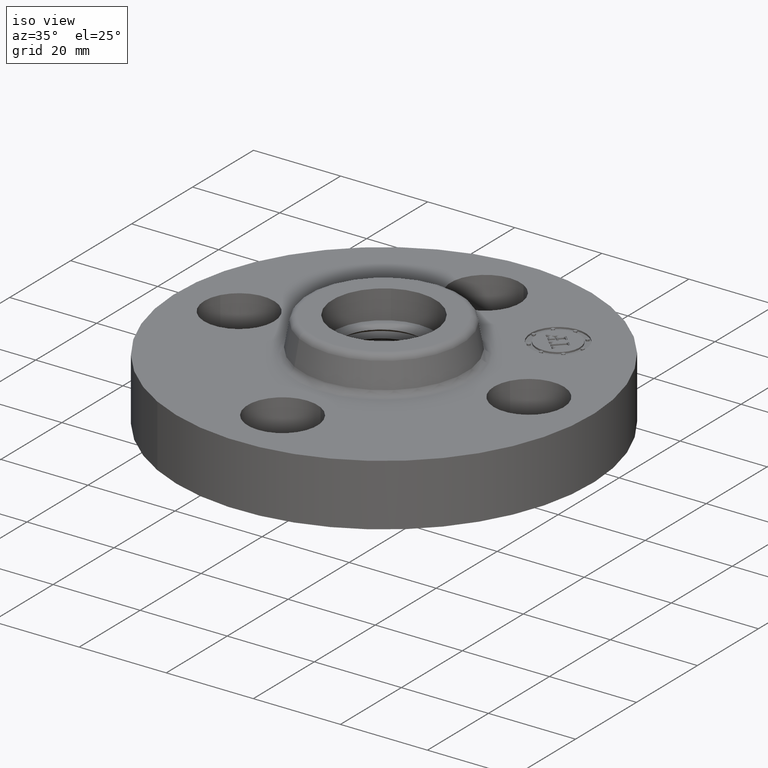
[diagram: clean part render]
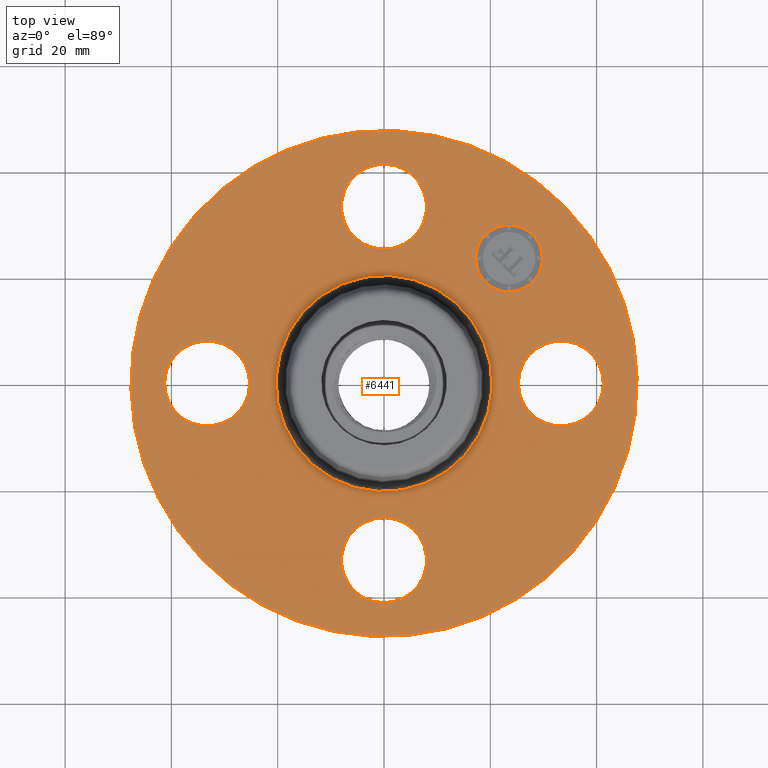
[diagram: tour spotlight — one face highlighted and labeled with its STEP entity id]
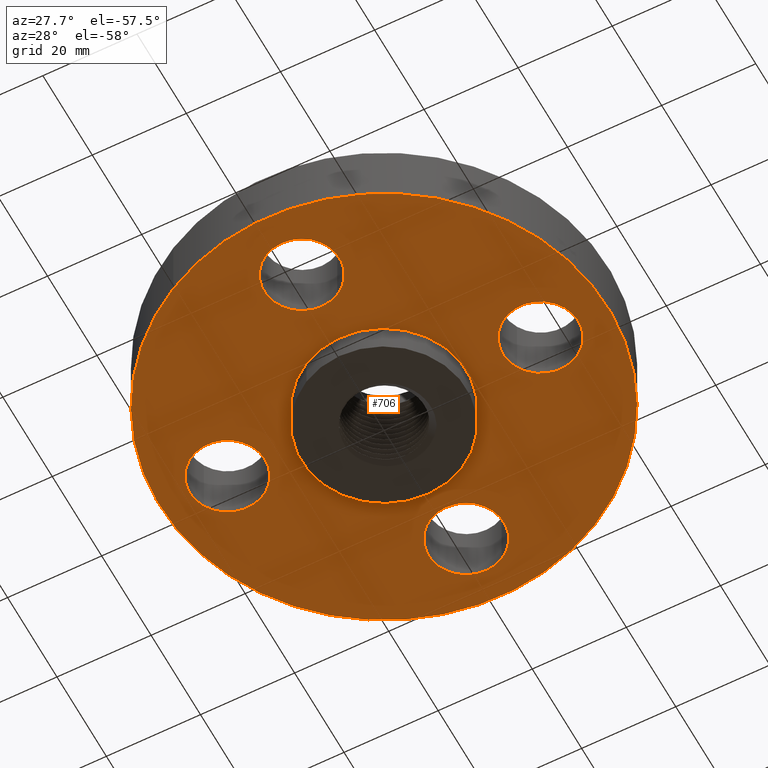
[diagram: tour spotlight — one face highlighted and labeled with its STEP entity id]
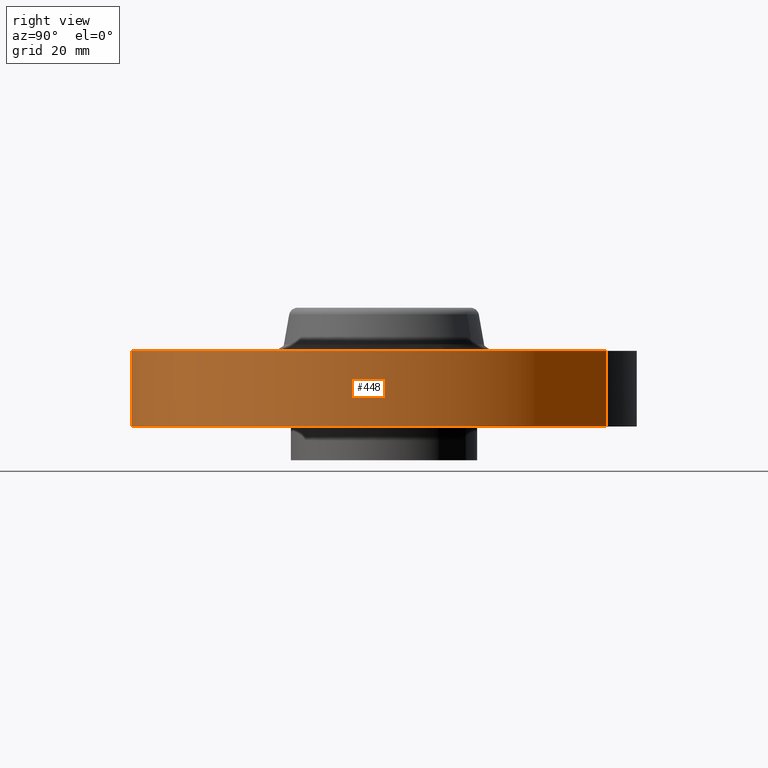
[diagram: tour spotlight — one face highlighted and labeled with its STEP entity id]
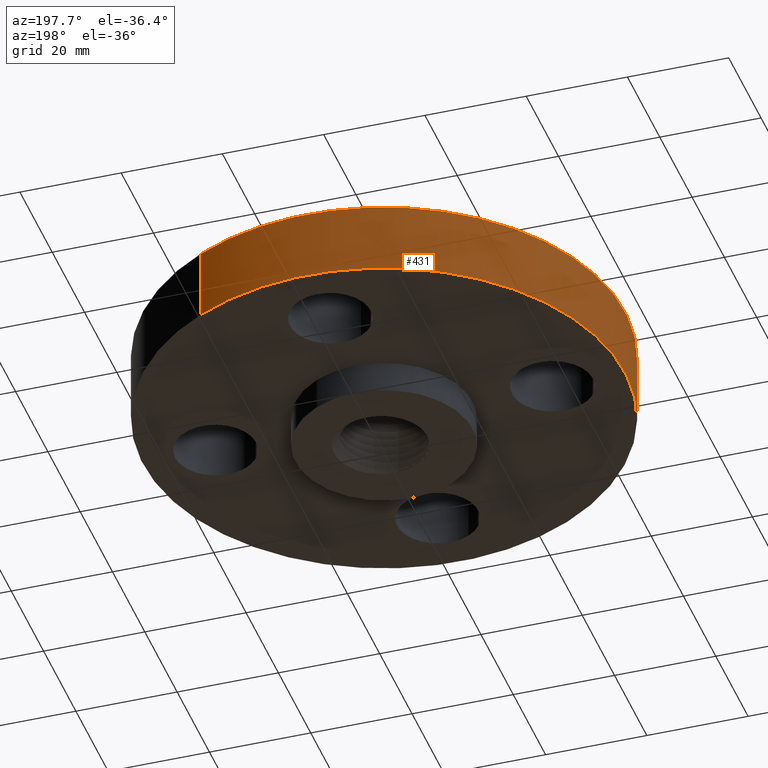
[diagram: tour spotlight — one face highlighted and labeled with its STEP entity id]
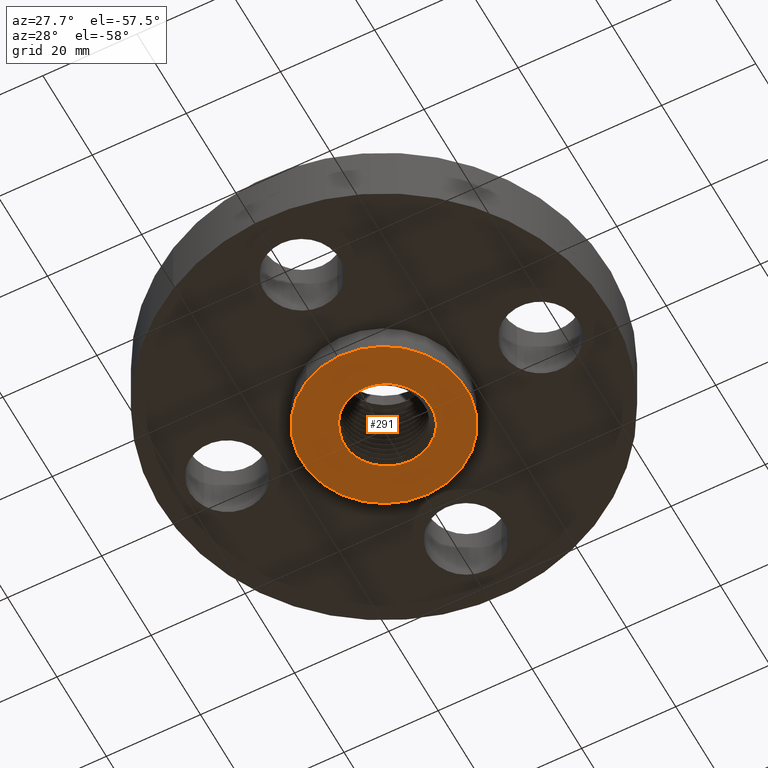
[diagram: tour spotlight — one face highlighted and labeled with its STEP entity id]
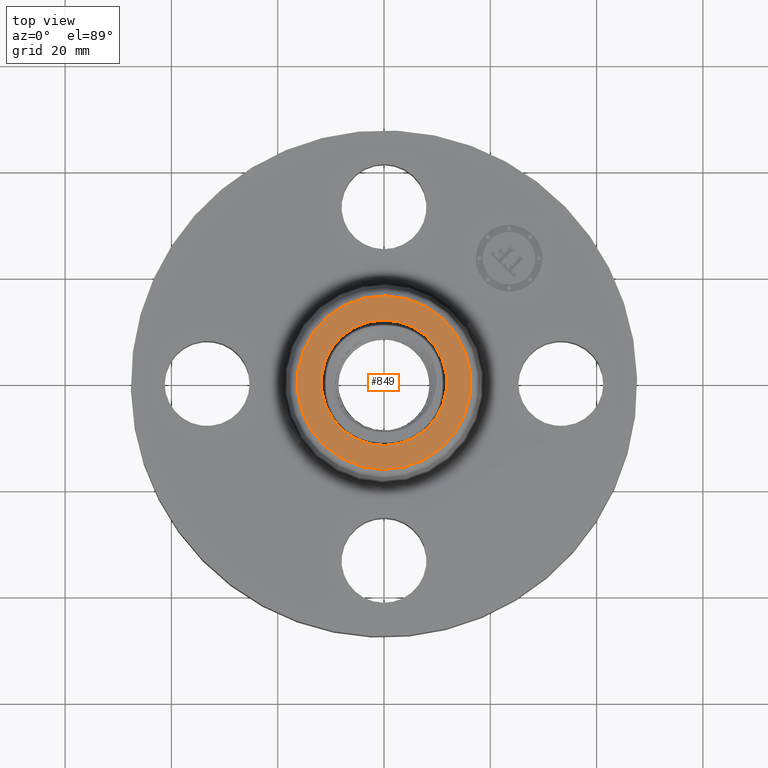
[diagram: tour spotlight — one face highlighted and labeled with its STEP entity id]
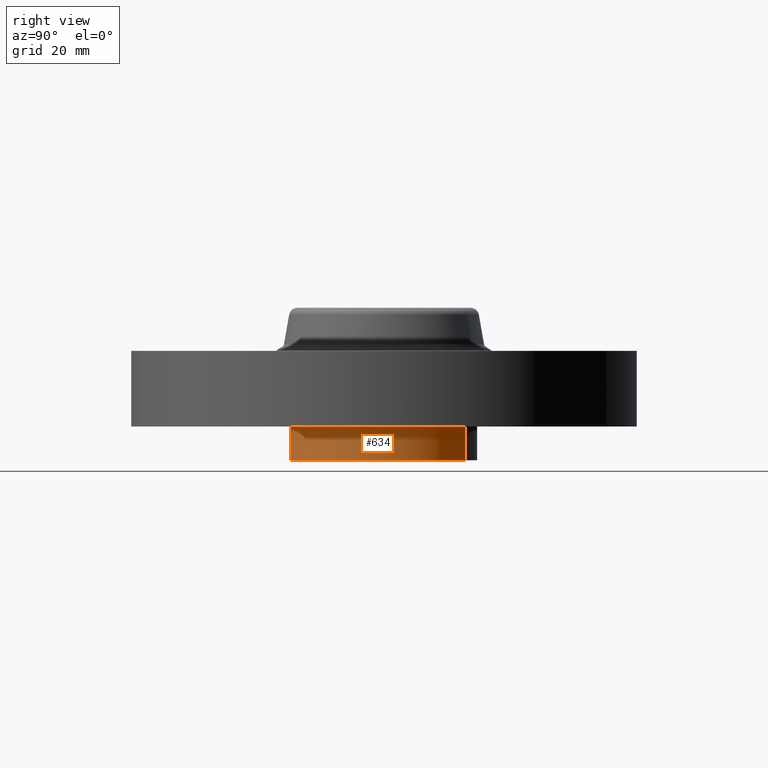
[diagram: tour spotlight — one face highlighted and labeled with its STEP entity id]
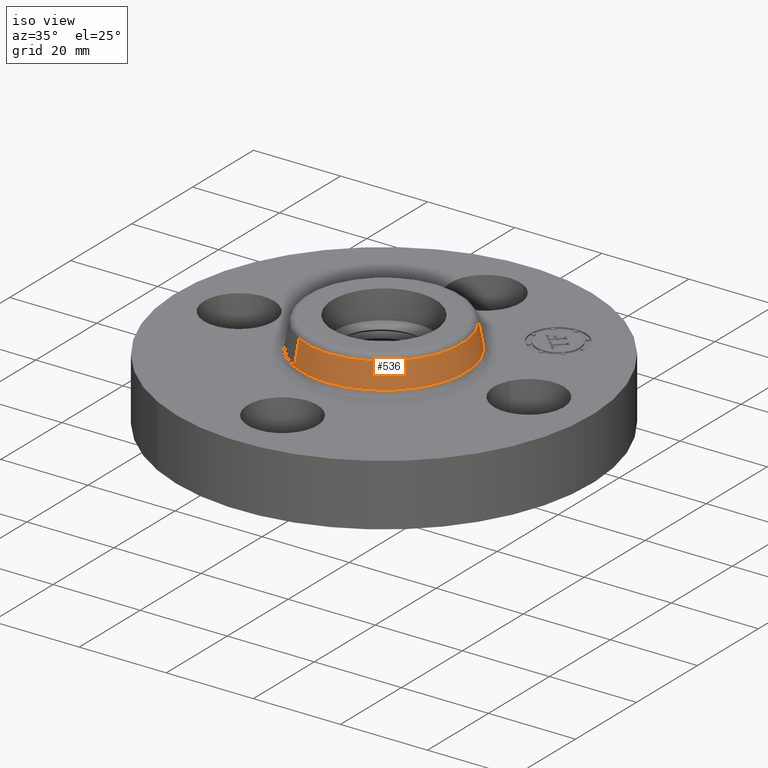
[diagram: tour spotlight — one face highlighted and labeled with its STEP entity id]
A machine part: a face-by-face anatomy tour. The part has 538 B-rep faces; the first image is the clean iso view, then the 8 largest visible faces are spotlighted one at a time (largest first), each with its STEP entity span.

Face 1 — top view, entity #6441. In plain terms, the highlighted planar face has unit normal (0, 0, -1).
Definition (entity closure, byte-faithful):
#365=AXIS2_PLACEMENT_3D('Circle Axis2P3D',#363,#364,$) ;
#382=AXIS2_PLACEMENT_3D('Circle Axis2P3D',#380,#381,$) ;
#415=AXIS2_PLACEMENT_3D('Circle Axis2P3D',#413,#414,$) ;
#439=AXIS2_PLACEMENT_3D('Circle Axis2P3D',#437,#438,$) ;
#456=AXIS2_PLACEMENT_3D('Circle Axis2P3D',#454,#455,$) ;
#491=AXIS2_PLACEMENT_3D('Circle Axis2P3D',#489,#490,$) ;
#728=AXIS2_PLACEMENT_3D('Circle Axis2P3D',#726,#727,$) ;
#740=AXIS2_PLACEMENT_3D('Circle Axis2P3D',#738,#739,$) ;
#771=AXIS2_PLACEMENT_3D('Circle Axis2P3D',#769,#770,$) ;
#783=AXIS2_PLACEMENT_3D('Circle Axis2P3D',#781,#782,$) ;
#814=AXIS2_PLACEMENT_3D('Circle Axis2P3D',#812,#813,$) ;
#826=AXIS2_PLACEMENT_3D('Circle Axis2P3D',#824,#825,$) ;
#6397=AXIS2_PLACEMENT_3D('Plane Axis2P3D',#6394,#6395,#6396) ;
#6425=AXIS2_PLACEMENT_3D('Circle Axis2P3D',#6423,#6424,$) ;
#6434=AXIS2_PLACEMENT_3D('Circle Axis2P3D',#6432,#6433,$) ;
#346=CARTESIAN_POINT('Vertex',(1.03356149301,0.151019044661,0.560000000002)) ;
#360=CARTESIAN_POINT('Vertex',(1.586438507,-0.151019044661,0.560000000002)) ;
#363=CARTESIAN_POINT('Axis2P3D Location',(1.31000000001,0.,0.560000000002)) ;
#380=CARTESIAN_POINT('Axis2P3D Location',(1.31000000001,0.,0.560000000002)) ;
#410=CARTESIAN_POINT('Vertex',(-0.898922884886,-1.64546730355,0.560000000002)) ;
#413=CARTESIAN_POINT('Axis2P3D Location',(0.,0.,0.560000000002)) ;
#417=CARTESIAN_POINT('Vertex',(0.898922884886,1.64546730355,0.560000000002)) ;
#437=CARTESIAN_POINT('Axis2P3D Location',(0.,0.,0.560000000002)) ;
#454=CARTESIAN_POINT('Axis2P3D Location',(0.,0.,0.560000000002)) ;
#458=CARTESIAN_POINT('Vertex',(0.383706301512,0.702369673661,0.560000000002)) ;
#460=CARTESIAN_POINT('Vertex',(-0.383706301512,-0.702369673661,0.560000000002)) ;
#489=CARTESIAN_POINT('Axis2P3D Location',(0.,0.,0.560000000002)) ;
#716=CARTESIAN_POINT('Vertex',(-0.151019044661,1.03356149301,0.560000000002)) ;
#723=CARTESIAN_POINT('Vertex',(0.151019044661,1.586438507,0.560000000002)) ;
#726=CARTESIAN_POINT('Axis2P3D Location',(-2.40643096033E-016,1.31000000001,0.560000000002)) ;
#738=CARTESIAN_POINT('Axis2P3D Location',(-2.40643096033E-016,1.31000000001,0.560000000002)) ;
#759=CARTESIAN_POINT('Vertex',(-1.03356149301,-0.151019044661,0.560000000002)) ;
#766=CARTESIAN_POINT('Vertex',(-1.586438507,0.151019044661,0.560000000002)) ;
#769=CARTESIAN_POINT('Axis2P3D Location',(-1.31000000001,-1.60428730689E-016,0.560000000002)) ;
#781=CARTESIAN_POINT('Axis2P3D Location',(-1.31000000001,-1.60428730689E-016,0.560000000002)) ;
#802=CARTESIAN_POINT('Vertex',(0.151019044661,-1.03356149301,0.560000000002)) ;
#809=CARTESIAN_POINT('Vertex',(-0.151019044661,-1.586438507,0.560000000002)) ;
#812=CARTESIAN_POINT('Axis2P3D Location',(-1.99526869207E-016,-1.31000000001,0.560000000002)) ;
#824=CARTESIAN_POINT('Axis2P3D Location',(-1.99526869207E-016,-1.31000000001,0.560000000002)) ;
#6394=CARTESIAN_POINT('Axis2P3D Location',(0.,1.87500000001,0.560000000002)) ;
#6423=CARTESIAN_POINT('Axis2P3D Location',(0.926309883358,0.926309883358,0.560000000002)) ;
#6427=CARTESIAN_POINT('Vertex',(0.751300955014,1.1013188117,0.560000000002)) ;
#6429=CARTESIAN_POINT('Vertex',(1.1013188117,0.751300955014,0.560000000002)) ;
#6432=CARTESIAN_POINT('Axis2P3D Location',(0.926309883358,0.926309883358,0.560000000002)) ;
#364=DIRECTION('Axis2P3D Direction',(0.,-0.,-0.0393700787402)) ;
#381=DIRECTION('Axis2P3D Direction',(0.,-0.,-0.0393700787402)) ;
#414=DIRECTION('Axis2P3D Direction',(0.,0.,-0.0393700787402)) ;
#438=DIRECTION('Axis2P3D Direction',(0.,0.,-0.0393700787402)) ;
#455=DIRECTION('Axis2P3D Direction',(0.,0.,-0.0393700787402)) ;
#490=DIRECTION('Axis2P3D Direction',(0.,0.,-0.0393700787402)) ;
#727=DIRECTION('Axis2P3D Direction',(0.,0.,-0.0393700787402)) ;
#739=DIRECTION('Axis2P3D Direction',(0.,0.,-0.0393700787402)) ;
#770=DIRECTION('Axis2P3D Direction',(-0.,0.,-0.0393700787402)) ;
#782=DIRECTION('Axis2P3D Direction',(-0.,0.,-0.0393700787402)) ;
#813=DIRECTION('Axis2P3D Direction',(0.,-0.,-0.0393700787402)) ;
#825=DIRECTION('Axis2P3D Direction',(0.,-0.,-0.0393700787402)) ;
#6395=DIRECTION('Axis2P3D Direction',(0.,0.,-0.0393700787402)) ;
#6396=DIRECTION('Axis2P3D XDirection',(0.0393700787402,0.,0.)) ;
#6424=DIRECTION('Axis2P3D Direction',(0.,0.,-0.0393700787402)) ;
#6433=DIRECTION('Axis2P3D Direction',(0.,0.,-0.0393700787402)) ;
#6400=ORIENTED_EDGE('',*,*,#441,.F.) ;
#6401=ORIENTED_EDGE('',*,*,#419,.F.) ;
#6404=ORIENTED_EDGE('',*,*,#367,.T.) ;
#6405=ORIENTED_EDGE('',*,*,#384,.T.) ;
#6408=ORIENTED_EDGE('',*,*,#493,.T.) ;
#6409=ORIENTED_EDGE('',*,*,#462,.T.) ;
#6412=ORIENTED_EDGE('',*,*,#828,.T.) ;
#6413=ORIENTED_EDGE('',*,*,#816,.T.) ;
#6416=ORIENTED_EDGE('',*,*,#785,.T.) ;
#6417=ORIENTED_EDGE('',*,*,#773,.T.) ;
#6420=ORIENTED_EDGE('',*,*,#742,.T.) ;
#6421=ORIENTED_EDGE('',*,*,#730,.T.) ;
#6438=ORIENTED_EDGE('',*,*,#6431,.T.) ;
#6439=ORIENTED_EDGE('',*,*,#6436,.T.) ;
#6406=FACE_BOUND('',#6403,.T.) ;
#6410=FACE_BOUND('',#6407,.T.) ;
#6414=FACE_BOUND('',#6411,.T.) ;
#6418=FACE_BOUND('',#6415,.T.) ;
#6422=FACE_BOUND('',#6419,.T.) ;
#6440=FACE_BOUND('',#6437,.T.) ;
#6441=ADVANCED_FACE('PartBody',(#6402,#6406,#6410,#6414,#6418,#6422,#6440),#6398,.F.) ;
#366=CIRCLE('generated circle',#365,0.315000000001) ;
#383=CIRCLE('generated circle',#382,0.315000000001) ;
#416=CIRCLE('generated circle',#415,1.87500000001) ;
#440=CIRCLE('generated circle',#439,1.87500000001) ;
#457=CIRCLE('generated circle',#456,0.800345977874) ;
#492=CIRCLE('generated circle',#491,0.800345977874) ;
#729=CIRCLE('generated circle',#728,0.315000000001) ;
#741=CIRCLE('generated circle',#740,0.315000000001) ;
#772=CIRCLE('generated circle',#771,0.315000000001) ;
#784=CIRCLE('generated circle',#783,0.315000000001) ;
#815=CIRCLE('generated circle',#814,0.315000000001) ;
#827=CIRCLE('generated circle',#826,0.315000000001) ;
#6426=CIRCLE('generated circle',#6425,0.247500000001) ;
#6435=CIRCLE('generated circle',#6434,0.247500000001) ;
#367=EDGE_CURVE('',#347,#361,#366,.T.) ;
#384=EDGE_CURVE('',#361,#347,#383,.T.) ;
#419=EDGE_CURVE('',#411,#418,#416,.T.) ;
#441=EDGE_CURVE('',#418,#411,#440,.T.) ;
#462=EDGE_CURVE('',#459,#461,#457,.T.) ;
#493=EDGE_CURVE('',#461,#459,#492,.T.) ;
#730=EDGE_CURVE('',#717,#724,#729,.T.) ;
#742=EDGE_CURVE('',#724,#717,#741,.T.) ;
#773=EDGE_CURVE('',#760,#767,#772,.T.) ;
#785=EDGE_CURVE('',#767,#760,#784,.T.) ;
#816=EDGE_CURVE('',#803,#810,#815,.T.) ;
#828=EDGE_CURVE('',#810,#803,#827,.T.) ;
#6431=EDGE_CURVE('',#6428,#6430,#6426,.T.) ;
#6436=EDGE_CURVE('',#6430,#6428,#6435,.T.) ;
#6399=EDGE_LOOP('',(#6400,#6401)) ;
#6403=EDGE_LOOP('',(#6404,#6405)) ;
#6407=EDGE_LOOP('',(#6408,#6409)) ;
#6411=EDGE_LOOP('',(#6412,#6413)) ;
#6415=EDGE_LOOP('',(#6416,#6417)) ;
#6419=EDGE_LOOP('',(#6420,#6421)) ;
#6437=EDGE_LOOP('',(#6438,#6439)) ;
#6402=FACE_OUTER_BOUND('',#6399,.T.) ;
#6398=PLANE('',#6397) ;
#347=VERTEX_POINT('',#346) ;
#361=VERTEX_POINT('',#360) ;
#411=VERTEX_POINT('',#410) ;
#418=VERTEX_POINT('',#417) ;
#459=VERTEX_POINT('',#458) ;
#461=VERTEX_POINT('',#460) ;
#717=VERTEX_POINT('',#716) ;
#724=VERTEX_POINT('',#723) ;
#760=VERTEX_POINT('',#759) ;
#767=VERTEX_POINT('',#766) ;
#803=VERTEX_POINT('',#802) ;
#810=VERTEX_POINT('',#809) ;
#6428=VERTEX_POINT('',#6427) ;
#6430=VERTEX_POINT('',#6429) ;

Face 2 — auxiliary view, entity #706. In plain terms, the highlighted planar face has unit normal (0, 0, -1).
Definition (entity closure, byte-faithful):
#351=AXIS2_PLACEMENT_3D('Circle Axis2P3D',#349,#350,$) ;
#377=AXIS2_PLACEMENT_3D('Circle Axis2P3D',#375,#376,$) ;
#399=AXIS2_PLACEMENT_3D('Circle Axis2P3D',#397,#398,$) ;
#434=AXIS2_PLACEMENT_3D('Circle Axis2P3D',#432,#433,$) ;
#606=AXIS2_PLACEMENT_3D('Circle Axis2P3D',#604,#605,$) ;
#625=AXIS2_PLACEMENT_3D('Circle Axis2P3D',#623,#624,$) ;
#638=AXIS2_PLACEMENT_3D('Plane Axis2P3D',#635,#636,#637) ;
#654=AXIS2_PLACEMENT_3D('Circle Axis2P3D',#652,#653,$) ;
#663=AXIS2_PLACEMENT_3D('Circle Axis2P3D',#661,#662,$) ;
#672=AXIS2_PLACEMENT_3D('Circle Axis2P3D',#670,#671,$) ;
#681=AXIS2_PLACEMENT_3D('Circle Axis2P3D',#679,#680,$) ;
#690=AXIS2_PLACEMENT_3D('Circle Axis2P3D',#688,#689,$) ;
#699=AXIS2_PLACEMENT_3D('Circle Axis2P3D',#697,#698,$) ;
#344=CARTESIAN_POINT('Vertex',(1.03356149301,0.151019044661,-6.99353086378E-017)) ;
#349=CARTESIAN_POINT('Axis2P3D Location',(1.31000000001,0.,0.)) ;
#353=CARTESIAN_POINT('Vertex',(1.586438507,-0.151019044661,-6.99353086378E-017)) ;
#375=CARTESIAN_POINT('Axis2P3D Location',(1.31000000001,0.,0.)) ;
#397=CARTESIAN_POINT('Axis2P3D Location',(0.,0.,6.99353086378E-017)) ;
#401=CARTESIAN_POINT('Vertex',(-0.898922884886,-1.64546730355,0.)) ;
#403=CARTESIAN_POINT('Vertex',(0.898922884886,1.64546730355,0.)) ;
#432=CARTESIAN_POINT('Axis2P3D Location',(0.,0.,6.99353086378E-017)) ;
#601=CARTESIAN_POINT('Vertex',(-0.330803621638,-0.605531967707,1.39870617276E-016)) ;
#604=CARTESIAN_POINT('Axis2P3D Location',(0.,0.,1.39870617276E-016)) ;
#608=CARTESIAN_POINT('Vertex',(0.330803621638,0.605531967707,1.39870617276E-016)) ;
#623=CARTESIAN_POINT('Axis2P3D Location',(0.,0.,1.39870617276E-016)) ;
#635=CARTESIAN_POINT('Axis2P3D Location',(0.,0.690000000003,0.)) ;
#652=CARTESIAN_POINT('Axis2P3D Location',(-3.49676543189E-017,-1.31000000001,0.)) ;
#656=CARTESIAN_POINT('Vertex',(0.151019044661,-1.03356149301,0.)) ;
#658=CARTESIAN_POINT('Vertex',(-0.151019044661,-1.586438507,-6.99353086378E-017)) ;
#661=CARTESIAN_POINT('Axis2P3D Location',(-1.39870617276E-016,-1.31000000001,0.)) ;
#670=CARTESIAN_POINT('Axis2P3D Location',(-1.31000000001,-1.39870617276E-016,0.)) ;
#674=CARTESIAN_POINT('Vertex',(-1.03356149301,-0.151019044661,0.)) ;
#676=CARTESIAN_POINT('Vertex',(-1.586438507,0.151019044661,-6.99353086378E-017)) ;
#679=CARTESIAN_POINT('Axis2P3D Location',(-1.31000000001,0.,0.)) ;
#688=CARTESIAN_POINT('Axis2P3D Location',(-3.1470888887E-016,1.31000000001,0.)) ;
#692=CARTESIAN_POINT('Vertex',(-0.151019044661,1.03356149301,0.)) ;
#694=CARTESIAN_POINT('Vertex',(0.151019044661,1.586438507,-6.99353086378E-017)) ;
#697=CARTESIAN_POINT('Axis2P3D Location',(-3.1470888887E-016,1.31000000001,0.)) ;
#350=DIRECTION('Axis2P3D Direction',(0.,-0.,-0.0393700787402)) ;
#376=DIRECTION('Axis2P3D Direction',(0.,-0.,-0.0393700787402)) ;
#398=DIRECTION('Axis2P3D Direction',(0.,0.,-0.0393700787402)) ;
#433=DIRECTION('Axis2P3D Direction',(0.,0.,-0.0393700787402)) ;
#605=DIRECTION('Axis2P3D Direction',(0.,0.,-0.0393700787402)) ;
#624=DIRECTION('Axis2P3D Direction',(0.,0.,-0.0393700787402)) ;
#636=DIRECTION('Axis2P3D Direction',(0.,0.,-0.0393700787402)) ;
#637=DIRECTION('Axis2P3D XDirection',(0.0393700787402,0.,0.)) ;
#653=DIRECTION('Axis2P3D Direction',(0.,0.,-0.0393700787402)) ;
#662=DIRECTION('Axis2P3D Direction',(0.,0.,-0.0393700787402)) ;
#671=DIRECTION('Axis2P3D Direction',(0.,0.,-0.0393700787402)) ;
#680=DIRECTION('Axis2P3D Direction',(0.,0.,-0.0393700787402)) ;
#689=DIRECTION('Axis2P3D Direction',(0.,0.,-0.0393700787402)) ;
#698=DIRECTION('Axis2P3D Direction',(0.,0.,-0.0393700787402)) ;
#641=ORIENTED_EDGE('',*,*,#405,.T.) ;
#642=ORIENTED_EDGE('',*,*,#436,.T.) ;
#645=ORIENTED_EDGE('',*,*,#379,.F.) ;
#646=ORIENTED_EDGE('',*,*,#355,.F.) ;
#649=ORIENTED_EDGE('',*,*,#627,.F.) ;
#650=ORIENTED_EDGE('',*,*,#610,.F.) ;
#667=ORIENTED_EDGE('',*,*,#660,.F.) ;
#668=ORIENTED_EDGE('',*,*,#665,.F.) ;
#685=ORIENTED_EDGE('',*,*,#678,.F.) ;
#686=ORIENTED_EDGE('',*,*,#683,.F.) ;
#703=ORIENTED_EDGE('',*,*,#696,.F.) ;
#704=ORIENTED_EDGE('',*,*,#701,.F.) ;
#647=FACE_BOUND('',#644,.T.) ;
#651=FACE_BOUND('',#648,.T.) ;
#669=FACE_BOUND('',#666,.T.) ;
#687=FACE_BOUND('',#684,.T.) ;
#705=FACE_BOUND('',#702,.T.) ;
#706=ADVANCED_FACE('PartBody',(#643,#647,#651,#669,#687,#705),#639,.T.) ;
#352=CIRCLE('generated circle',#351,0.315000000001) ;
#378=CIRCLE('generated circle',#377,0.315000000001) ;
#400=CIRCLE('generated circle',#399,1.87500000001) ;
#435=CIRCLE('generated circle',#434,1.87500000001) ;
#607=CIRCLE('generated circle',#606,0.690000000003) ;
#626=CIRCLE('generated circle',#625,0.690000000003) ;
#655=CIRCLE('generated circle',#654,0.315000000001) ;
#664=CIRCLE('generated circle',#663,0.315000000001) ;
#673=CIRCLE('generated circle',#672,0.315000000001) ;
#682=CIRCLE('generated circle',#681,0.315000000001) ;
#691=CIRCLE('generated circle',#690,0.315000000001) ;
#700=CIRCLE('generated circle',#699,0.315000000001) ;
#355=EDGE_CURVE('',#345,#354,#352,.T.) ;
#379=EDGE_CURVE('',#354,#345,#378,.T.) ;
#405=EDGE_CURVE('',#402,#404,#400,.T.) ;
#436=EDGE_CURVE('',#404,#402,#435,.T.) ;
#610=EDGE_CURVE('',#602,#609,#607,.T.) ;
#627=EDGE_CURVE('',#609,#602,#626,.T.) ;
#660=EDGE_CURVE('',#657,#659,#655,.T.) ;
#665=EDGE_CURVE('',#659,#657,#664,.T.) ;
#678=EDGE_CURVE('',#675,#677,#673,.T.) ;
#683=EDGE_CURVE('',#677,#675,#682,.T.) ;
#696=EDGE_CURVE('',#693,#695,#691,.T.) ;
#701=EDGE_CURVE('',#695,#693,#700,.T.) ;
#640=EDGE_LOOP('',(#641,#642)) ;
#644=EDGE_LOOP('',(#645,#646)) ;
#648=EDGE_LOOP('',(#649,#650)) ;
#666=EDGE_LOOP('',(#667,#668)) ;
#684=EDGE_LOOP('',(#685,#686)) ;
#702=EDGE_LOOP('',(#703,#704)) ;
#643=FACE_OUTER_BOUND('',#640,.T.) ;
#639=PLANE('',#638) ;
#345=VERTEX_POINT('',#344) ;
#354=VERTEX_POINT('',#353) ;
#402=VERTEX_POINT('',#401) ;
#404=VERTEX_POINT('',#403) ;
#602=VERTEX_POINT('',#601) ;
#609=VERTEX_POINT('',#608) ;
#657=VERTEX_POINT('',#656) ;
#659=VERTEX_POINT('',#658) ;
#675=VERTEX_POINT('',#674) ;
#677=VERTEX_POINT('',#676) ;
#693=VERTEX_POINT('',#692) ;
#695=VERTEX_POINT('',#694) ;

Face 3 — right view, entity #448. In plain terms, the highlighted cylindrical surface (partial cylindrical patch) has radius 47.625 mm, axis along (0, 0, -1).
Definition (entity closure, byte-faithful):
#395=AXIS2_PLACEMENT_3D('Cylinder Axis2P3D',#392,#393,#394) ;
#434=AXIS2_PLACEMENT_3D('Circle Axis2P3D',#432,#433,$) ;
#439=AXIS2_PLACEMENT_3D('Circle Axis2P3D',#437,#438,$) ;
#392=CARTESIAN_POINT('Axis2P3D Location',(0.,0.,0.315000000001)) ;
#401=CARTESIAN_POINT('Vertex',(-0.898922884886,-1.64546730355,0.)) ;
#403=CARTESIAN_POINT('Vertex',(0.898922884886,1.64546730355,0.)) ;
#406=CARTESIAN_POINT('Line Origine',(-0.898922884886,-1.64546730355,0.280000000001)) ;
#410=CARTESIAN_POINT('Vertex',(-0.898922884886,-1.64546730355,0.560000000002)) ;
#417=CARTESIAN_POINT('Vertex',(0.898922884886,1.64546730355,0.560000000002)) ;
#420=CARTESIAN_POINT('Line Origine',(0.898922884886,1.64546730355,0.280000000001)) ;
#432=CARTESIAN_POINT('Axis2P3D Location',(0.,0.,6.99353086378E-017)) ;
#437=CARTESIAN_POINT('Axis2P3D Location',(0.,0.,0.560000000002)) ;
#393=DIRECTION('Axis2P3D Direction',(0.,0.,-0.0393700787402)) ;
#394=DIRECTION('Axis2P3D XDirection',(0.0188750212049,0.0345504945626,0.)) ;
#407=DIRECTION('Vector Direction',(0.,0.,-0.0393700787402)) ;
#421=DIRECTION('Vector Direction',(0.,0.,-0.0393700787402)) ;
#433=DIRECTION('Axis2P3D Direction',(0.,0.,-0.0393700787402)) ;
#438=DIRECTION('Axis2P3D Direction',(0.,0.,-0.0393700787402)) ;
#408=VECTOR('Line Direction',#407,0.0393700787402) ;
#422=VECTOR('Line Direction',#421,0.0393700787402) ;
#443=ORIENTED_EDGE('',*,*,#436,.F.) ;
#444=ORIENTED_EDGE('',*,*,#424,.T.) ;
#445=ORIENTED_EDGE('',*,*,#441,.T.) ;
#446=ORIENTED_EDGE('',*,*,#412,.F.) ;
#448=ADVANCED_FACE('PartBody',(#447),#396,.T.) ;
#435=CIRCLE('generated circle',#434,1.87500000001) ;
#440=CIRCLE('generated circle',#439,1.87500000001) ;
#396=CYLINDRICAL_SURFACE('generated cylinder',#395,1.87500000001) ;
#412=EDGE_CURVE('',#402,#411,#409,.F.) ;
#424=EDGE_CURVE('',#404,#418,#423,.F.) ;
#436=EDGE_CURVE('',#404,#402,#435,.T.) ;
#441=EDGE_CURVE('',#418,#411,#440,.T.) ;
#442=EDGE_LOOP('',(#443,#444,#445,#446)) ;
#447=FACE_OUTER_BOUND('',#442,.T.) ;
#409=LINE('Line',#406,#408) ;
#423=LINE('Line',#420,#422) ;
#402=VERTEX_POINT('',#401) ;
#404=VERTEX_POINT('',#403) ;
#411=VERTEX_POINT('',#410) ;
#418=VERTEX_POINT('',#417) ;

Face 4 — auxiliary view, entity #431. In plain terms, the highlighted cylindrical surface (partial cylindrical patch) has radius 47.625 mm, axis along (0, 0, -1).
Definition (entity closure, byte-faithful):
#395=AXIS2_PLACEMENT_3D('Cylinder Axis2P3D',#392,#393,#394) ;
#399=AXIS2_PLACEMENT_3D('Circle Axis2P3D',#397,#398,$) ;
#415=AXIS2_PLACEMENT_3D('Circle Axis2P3D',#413,#414,$) ;
#392=CARTESIAN_POINT('Axis2P3D Location',(0.,0.,0.315000000001)) ;
#397=CARTESIAN_POINT('Axis2P3D Location',(0.,0.,6.99353086378E-017)) ;
#401=CARTESIAN_POINT('Vertex',(-0.898922884886,-1.64546730355,0.)) ;
#403=CARTESIAN_POINT('Vertex',(0.898922884886,1.64546730355,0.)) ;
#406=CARTESIAN_POINT('Line Origine',(-0.898922884886,-1.64546730355,0.280000000001)) ;
#410=CARTESIAN_POINT('Vertex',(-0.898922884886,-1.64546730355,0.560000000002)) ;
#413=CARTESIAN_POINT('Axis2P3D Location',(0.,0.,0.560000000002)) ;
#417=CARTESIAN_POINT('Vertex',(0.898922884886,1.64546730355,0.560000000002)) ;
#420=CARTESIAN_POINT('Line Origine',(0.898922884886,1.64546730355,0.280000000001)) ;
#393=DIRECTION('Axis2P3D Direction',(0.,0.,-0.0393700787402)) ;
#394=DIRECTION('Axis2P3D XDirection',(0.0188750212049,0.0345504945626,0.)) ;
#398=DIRECTION('Axis2P3D Direction',(0.,0.,-0.0393700787402)) ;
#407=DIRECTION('Vector Direction',(0.,0.,-0.0393700787402)) ;
#414=DIRECTION('Axis2P3D Direction',(0.,0.,-0.0393700787402)) ;
#421=DIRECTION('Vector Direction',(0.,0.,-0.0393700787402)) ;
#408=VECTOR('Line Direction',#407,0.0393700787402) ;
#422=VECTOR('Line Direction',#421,0.0393700787402) ;
#426=ORIENTED_EDGE('',*,*,#405,.F.) ;
#427=ORIENTED_EDGE('',*,*,#412,.T.) ;
#428=ORIENTED_EDGE('',*,*,#419,.T.) ;
#429=ORIENTED_EDGE('',*,*,#424,.F.) ;
#431=ADVANCED_FACE('PartBody',(#430),#396,.T.) ;
#400=CIRCLE('generated circle',#399,1.87500000001) ;
#416=CIRCLE('generated circle',#415,1.87500000001) ;
#396=CYLINDRICAL_SURFACE('generated cylinder',#395,1.87500000001) ;
#405=EDGE_CURVE('',#402,#404,#400,.T.) ;
#412=EDGE_CURVE('',#402,#411,#409,.F.) ;
#419=EDGE_CURVE('',#411,#418,#416,.T.) ;
#424=EDGE_CURVE('',#404,#418,#423,.F.) ;
#425=EDGE_LOOP('',(#426,#427,#428,#429)) ;
#430=FACE_OUTER_BOUND('',#425,.T.) ;
#409=LINE('Line',#406,#408) ;
#423=LINE('Line',#420,#422) ;
#402=VERTEX_POINT('',#401) ;
#404=VERTEX_POINT('',#403) ;
#411=VERTEX_POINT('',#410) ;
#418=VERTEX_POINT('',#417) ;

Face 5 — auxiliary view, entity #291. In plain terms, the highlighted planar face has unit normal (0, 0, -1).
Definition (entity closure, byte-faithful):
#165=AXIS2_PLACEMENT_3D('Plane Axis2P3D',#162,#163,#164) ;
#169=AXIS2_PLACEMENT_3D('Circle Axis2P3D',#167,#168,$) ;
#178=AXIS2_PLACEMENT_3D('Circle Axis2P3D',#176,#177,$) ;
#279=AXIS2_PLACEMENT_3D('Circle Axis2P3D',#277,#278,$) ;
#162=CARTESIAN_POINT('Axis2P3D Location',(0.,0.,-0.250000000001)) ;
#167=CARTESIAN_POINT('Axis2P3D Location',(0.,0.,-0.250000000001)) ;
#171=CARTESIAN_POINT('Vertex',(0.330803621638,0.605531967707,-0.250000000001)) ;
#173=CARTESIAN_POINT('Vertex',(-0.330803621638,-0.605531967707,-0.250000000001)) ;
#176=CARTESIAN_POINT('Axis2P3D Location',(0.,0.,-0.250000000001)) ;
#186=CARTESIAN_POINT('Control Point',(-5.23730465166E-005,-0.354908926748,-0.250000000001)) ;
#187=CARTESIAN_POINT('Control Point',(-0.0386866398634,-0.353017170556,-0.250000000001)) ;
#188=CARTESIAN_POINT('Control Point',(-0.0769346897552,-0.345862153223,-0.250000000001)) ;
#189=CARTESIAN_POINT('Control Point',(-0.113827281941,-0.333513532693,-0.250000000001)) ;
#190=CARTESIAN_POINT('Control Point',(-0.183042936085,-0.299113525124,-0.250000000001)) ;
#191=CARTESIAN_POINT('Control Point',(-0.239926888184,-0.247595781037,-0.250000000001)) ;
#192=CARTESIAN_POINT('Control Point',(-0.264511640908,-0.218108143859,-0.250000000001)) ;
#193=CARTESIAN_POINT('Control Point',(-0.28675055226,-0.182209626684,-0.250000000001)) ;
#194=CARTESIAN_POINT('Control Point',(-0.303000810088,-0.143847807432,-0.250000000001)) ;
#195=CARTESIAN_POINT('Control Point',(-0.304523993938,-0.140095119641,-0.250000000001)) ;
#196=CARTESIAN_POINT('Control Point',(-0.305989133617,-0.136322773877,-0.250000000001)) ;
#197=CARTESIAN_POINT('Control Point',(-0.30739637151,-0.1325306289,-0.250000000001)) ;
#198=CARTESIAN_POINT('Vertex',(-5.2373046516E-005,-0.354908926748,-0.250000000001)) ;
#200=CARTESIAN_POINT('Vertex',(-0.307396683915,-0.132530774786,-0.250000276707)) ;
#204=CARTESIAN_POINT('Control Point',(0.174270896122,-0.319084082485,-0.250000000001)) ;
#205=CARTESIAN_POINT('Control Point',(0.141730419389,-0.334894182054,-0.250000000001)) ;
#206=CARTESIAN_POINT('Control Point',(0.107315166618,-0.34660655647,-0.250000000001)) ;
#207=CARTESIAN_POINT('Control Point',(0.0716916663109,-0.353909835143,-0.250000000001)) ;
#208=CARTESIAN_POINT('Control Point',(0.0356546796772,-0.356657349797,-0.250000000001)) ;
#209=CARTESIAN_POINT('Control Point',(-5.23730465159E-005,-0.354908926748,-0.250000000001)) ;
#210=CARTESIAN_POINT('Vertex',(0.174270896122,-0.319084082485,-0.250000000001)) ;
#214=CARTESIAN_POINT('Control Point',(0.345046473445,0.183011751631,-0.250000000001)) ;
#215=CARTESIAN_POINT('Control Point',(0.358966019819,0.15369854519,-0.250000000001)) ;
#216=CARTESIAN_POINT('Control Point',(0.369811095183,0.122995392379,-0.250000000001)) ;
#217=CARTESIAN_POINT('Control Point',(0.377385275927,0.0913282704493,-0.250000000001)) ;
#218=CARTESIAN_POINT('Control Point',(0.386823301129,0.0189960363714,-0.250000000001)) ;
#219=CARTESIAN_POINT('Control Point',(0.379157218469,-0.0533913628939,-0.250000000001)) ;
#220=CARTESIAN_POINT('Control Point',(0.36961544188,-0.0926933398331,-0.250000000001)) ;
#221=CARTESIAN_POINT('Control Point',(0.34047010297,-0.167594973368,-0.250000000001)) ;
#222=CARTESIAN_POINT('Control Point',(0.293052295071,-0.231925031407,-0.250000000001)) ;
#223=CARTESIAN_POINT('Control Point',(0.265244736112,-0.26063441549,-0.250000000001)) ;
#224=CARTESIAN_POINT('Control Point',(0.229331797874,-0.288889030932,-0.250000000001)) ;
#225=CARTESIAN_POINT('Control Point',(0.189999058039,-0.311044697834,-0.250000000001)) ;
#226=CARTESIAN_POINT('Control Point',(0.184805539683,-0.313833253053,-0.250000000001)) ;
#227=CARTESIAN_POINT('Control Point',(0.179563011256,-0.316512858078,-0.250000000001)) ;
#228=CARTESIAN_POINT('Control Point',(0.174270896122,-0.319084082485,-0.250000000001)) ;
#229=CARTESIAN_POINT('Vertex',(0.345046473445,0.183011751631,-0.250000000001)) ;
#233=CARTESIAN_POINT('Control Point',(0.345046473445,0.183011751631,-0.250000000001)) ;
#234=CARTESIAN_POINT('Control Point',(0.324306111264,0.21787596521,-0.250000000001)) ;
#235=CARTESIAN_POINT('Control Point',(0.299099673349,0.249933375831,-0.250000000001)) ;
#236=CARTESIAN_POINT('Control Point',(0.269910133945,0.278410508094,-0.250000000001)) ;
#237=CARTESIAN_POINT('Control Point',(0.211464502718,0.322047575165,-0.250000000001)) ;
#238=CARTESIAN_POINT('Control Point',(0.145020471692,0.350575353483,-0.250000000001)) ;
#239=CARTESIAN_POINT('Control Point',(0.114328171635,0.360046962882,-0.250000000001)) ;
#240=CARTESIAN_POINT('Control Point',(0.0727486142792,0.368165096121,-0.250000000001)) ;
#241=CARTESIAN_POINT('Control Point',(0.0307976301019,0.370360566909,-0.250000000001)) ;
#242=CARTESIAN_POINT('Control Point',(0.0205066753174,0.370541750816,-0.250000000001)) ;
#243=CARTESIAN_POINT('Control Point',(0.010226643791,0.370365932749,-0.250000000001)) ;
#244=CARTESIAN_POINT('Control Point',(-2.57243179049E-005,0.369834376327,-0.250000000001)) ;
#245=CARTESIAN_POINT('Vertex',(-2.5724317905E-005,0.369834376327,-0.250000000001)) ;
#249=CARTESIAN_POINT('Control Point',(-2.57243179049E-005,0.369834376327,-0.250000000001)) ;
#250=CARTESIAN_POINT('Control Point',(-0.0331582864355,0.368116546346,-0.250000000001)) ;
#251=CARTESIAN_POINT('Control Point',(-0.0660018650212,0.362683427503,-0.250000000001)) ;
#252=CARTESIAN_POINT('Control Point',(-0.0980079677755,0.353574232532,-0.250000000001)) ;
#253=CARTESIAN_POINT('Control Point',(-0.131945802068,0.339591703114,-0.250000000001)) ;
#254=CARTESIAN_POINT('Control Point',(-0.163562934901,0.321656435227,-0.250000000001)) ;
#255=CARTESIAN_POINT('Control Point',(-0.166650089116,0.319854235017,-0.250000000001)) ;
#256=CARTESIAN_POINT('Control Point',(-0.169712758052,0.318015018853,-0.250000000001)) ;
#257=CARTESIAN_POINT('Control Point',(-0.172751120956,0.316138736708,-0.250000000001)) ;
#258=CARTESIAN_POINT('Vertex',(-0.172751120956,0.316138736708,-0.250000000001)) ;
#262=CARTESIAN_POINT('Control Point',(-0.172751120956,0.316138736708,-0.250000000001)) ;
#263=CARTESIAN_POINT('Control Point',(-0.205906796749,0.295664091407,-0.250000000001)) ;
#264=CARTESIAN_POINT('Control Point',(-0.236168199992,0.27077559089,-0.250000000001)) ;
#265=CARTESIAN_POINT('Control Point',(-0.262728068221,0.242002520792,-0.250000000001)) ;
#266=CARTESIAN_POINT('Control Point',(-0.307170911107,0.178162495666,-0.250000000001)) ;
#267=CARTESIAN_POINT('Control Point',(-0.332556597932,0.105283576812,-0.250000000001)) ;
#268=CARTESIAN_POINT('Control Point',(-0.340077386143,0.0674272699741,-0.250000000001)) ;
#269=CARTESIAN_POINT('Control Point',(-0.343163708208,0.0129630457538,-0.250000000001)) ;
#270=CARTESIAN_POINT('Control Point',(-0.335623672001,-0.0403226810981,-0.250000000001)) ;
#271=CARTESIAN_POINT('Control Point',(-0.332445352784,-0.0560081591258,-0.250000000001)) ;
#272=CARTESIAN_POINT('Control Point',(-0.328351035717,-0.0714401650334,-0.250000000001)) ;
#273=CARTESIAN_POINT('Control Point',(-0.323367203823,-0.0865473335658,-0.250000000001)) ;
#274=CARTESIAN_POINT('Vertex',(-0.323367712004,-0.0865474583108,-0.249999695524)) ;
#277=CARTESIAN_POINT('Axis2P3D Location',(0.,8.74191357973E-018,-0.250000000001)) ;
#163=DIRECTION('Axis2P3D Direction',(0.,0.,-0.0393700787402)) ;
#164=DIRECTION('Axis2P3D XDirection',(0.0393700787402,0.,0.)) ;
#168=DIRECTION('Axis2P3D Direction',(0.,0.,-0.0393700787402)) ;
#177=DIRECTION('Axis2P3D Direction',(0.,0.,-0.0393700787402)) ;
#278=DIRECTION('Axis2P3D Direction',(0.,0.,-0.0393700787402)) ;
#182=ORIENTED_EDGE('',*,*,#175,.T.) ;
#183=ORIENTED_EDGE('',*,*,#180,.T.) ;
#283=ORIENTED_EDGE('',*,*,#202,.F.) ;
#284=ORIENTED_EDGE('',*,*,#212,.F.) ;
#285=ORIENTED_EDGE('',*,*,#231,.F.) ;
#286=ORIENTED_EDGE('',*,*,#247,.T.) ;
#287=ORIENTED_EDGE('',*,*,#260,.T.) ;
#288=ORIENTED_EDGE('',*,*,#276,.T.) ;
#289=ORIENTED_EDGE('',*,*,#281,.F.) ;
#290=FACE_BOUND('',#282,.T.) ;
#291=ADVANCED_FACE('PartBody',(#184,#290),#166,.T.) ;
#185=B_SPLINE_CURVE_WITH_KNOTS('',5,(#186,#187,#188,#189,#190,#191,#192,#193,#194,#195,#196,#197),.UNSPECIFIED.,.F.,.U.,(6,3,3,6),(0.,7.02417493972,14.0543947684,14.8114074369),.UNSPECIFIED.) ;
#203=B_SPLINE_CURVE_WITH_KNOTS('',5,(#204,#205,#206,#207,#208,#209),.UNSPECIFIED.,.F.,.U.,(6,6),(0.,6.49197216944),.UNSPECIFIED.) ;
#213=B_SPLINE_CURVE_WITH_KNOTS('',5,(#214,#215,#216,#217,#218,#219,#220,#221,#222,#223,#224,#225,#226,#227,#228),.UNSPECIFIED.,.F.,.U.,(6,3,3,3,6),(0.,5.6313027963,12.6674778595,19.6996323026,20.7554331906),.UNSPECIFIED.) ;
#232=B_SPLINE_CURVE_WITH_KNOTS('',5,(#233,#234,#235,#236,#237,#238,#239,#240,#241,#242,#243,#244),.UNSPECIFIED.,.F.,.U.,(6,3,3,6),(0.,7.04025573717,12.67180055,14.5009463127),.UNSPECIFIED.) ;
#248=B_SPLINE_CURVE_WITH_KNOTS('',5,(#249,#250,#251,#252,#253,#254,#255,#256,#257),.UNSPECIFIED.,.F.,.U.,(6,3,6),(0.,5.91124752314,6.55601110036),.UNSPECIFIED.) ;
#261=B_SPLINE_CURVE_WITH_KNOTS('',5,(#262,#263,#264,#265,#266,#267,#268,#269,#270,#271,#272,#273),.UNSPECIFIED.,.F.,.U.,(6,3,3,6),(0.,7.03588505529,14.0809343018,17.0675239899),.UNSPECIFIED.) ;
#170=CIRCLE('generated circle',#169,0.690000000003) ;
#179=CIRCLE('generated circle',#178,0.690000000003) ;
#280=CIRCLE('generated circle',#279,0.334749358979) ;
#175=EDGE_CURVE('',#172,#174,#170,.T.) ;
#180=EDGE_CURVE('',#174,#172,#179,.T.) ;
#202=EDGE_CURVE('',#199,#201,#185,.T.) ;
#212=EDGE_CURVE('',#211,#199,#203,.T.) ;
#231=EDGE_CURVE('',#230,#211,#213,.T.) ;
#247=EDGE_CURVE('',#230,#246,#232,.T.) ;
#260=EDGE_CURVE('',#246,#259,#248,.T.) ;
#276=EDGE_CURVE('',#259,#275,#261,.T.) ;
#281=EDGE_CURVE('',#201,#275,#280,.T.) ;
#181=EDGE_LOOP('',(#182,#183)) ;
#282=EDGE_LOOP('',(#283,#284,#285,#286,#287,#288,#289)) ;
#184=FACE_OUTER_BOUND('',#181,.T.) ;
#166=PLANE('',#165) ;
#172=VERTEX_POINT('',#171) ;
#174=VERTEX_POINT('',#173) ;
#199=VERTEX_POINT('',#198) ;
#201=VERTEX_POINT('',#200) ;
#211=VERTEX_POINT('',#210) ;
#230=VERTEX_POINT('',#229) ;
#246=VERTEX_POINT('',#245) ;
#259=VERTEX_POINT('',#258) ;
#275=VERTEX_POINT('',#274) ;

Face 6 — top view, entity #849. In plain terms, the highlighted planar face has unit normal (0, 0, -1).
Definition (entity closure, byte-faithful):
#299=AXIS2_PLACEMENT_3D('Circle Axis2P3D',#297,#298,$) ;
#325=AXIS2_PLACEMENT_3D('Circle Axis2P3D',#323,#324,$) ;
#563=AXIS2_PLACEMENT_3D('Circle Axis2P3D',#561,#562,$) ;
#582=AXIS2_PLACEMENT_3D('Circle Axis2P3D',#580,#581,$) ;
#839=AXIS2_PLACEMENT_3D('Plane Axis2P3D',#836,#837,#838) ;
#297=CARTESIAN_POINT('Axis2P3D Location',(0.,0.,0.880000000004)) ;
#301=CARTESIAN_POINT('Vertex',(-0.222932875452,0.408075891281,0.880000000004)) ;
#303=CARTESIAN_POINT('Vertex',(0.222932875452,-0.408075891281,0.880000000004)) ;
#323=CARTESIAN_POINT('Axis2P3D Location',(0.,0.,0.880000000004)) ;
#558=CARTESIAN_POINT('Vertex',(0.308380595934,0.564486894472,0.880000000004)) ;
#561=CARTESIAN_POINT('Axis2P3D Location',(0.,0.,0.880000000004)) ;
#565=CARTESIAN_POINT('Vertex',(-0.308380595934,-0.564486894472,0.880000000004)) ;
#580=CARTESIAN_POINT('Axis2P3D Location',(0.,0.,0.880000000004)) ;
#836=CARTESIAN_POINT('Axis2P3D Location',(0.,0.643229388305,0.880000000004)) ;
#298=DIRECTION('Axis2P3D Direction',(0.,0.,0.0393700787402)) ;
#324=DIRECTION('Axis2P3D Direction',(0.,0.,0.0393700787402)) ;
#562=DIRECTION('Axis2P3D Direction',(0.,0.,-0.0393700787402)) ;
#581=DIRECTION('Axis2P3D Direction',(0.,0.,-0.0393700787402)) ;
#837=DIRECTION('Axis2P3D Direction',(0.,0.,-0.0393700787402)) ;
#838=DIRECTION('Axis2P3D XDirection',(0.0393700787402,0.,0.)) ;
#842=ORIENTED_EDGE('',*,*,#567,.F.) ;
#843=ORIENTED_EDGE('',*,*,#584,.F.) ;
#846=ORIENTED_EDGE('',*,*,#305,.T.) ;
#847=ORIENTED_EDGE('',*,*,#327,.T.) ;
#848=FACE_BOUND('',#845,.T.) ;
#849=ADVANCED_FACE('PartBody',(#844,#848),#840,.F.) ;
#300=CIRCLE('generated circle',#299,0.465000000002) ;
#326=CIRCLE('generated circle',#325,0.465000000002) ;
#564=CIRCLE('generated circle',#563,0.643229388305) ;
#583=CIRCLE('generated circle',#582,0.643229388305) ;
#305=EDGE_CURVE('',#302,#304,#300,.F.) ;
#327=EDGE_CURVE('',#304,#302,#326,.F.) ;
#567=EDGE_CURVE('',#559,#566,#564,.T.) ;
#584=EDGE_CURVE('',#566,#559,#583,.T.) ;
#841=EDGE_LOOP('',(#842,#843)) ;
#845=EDGE_LOOP('',(#846,#847)) ;
#844=FACE_OUTER_BOUND('',#841,.T.) ;
#840=PLANE('',#839) ;
#302=VERTEX_POINT('',#301) ;
#304=VERTEX_POINT('',#303) ;
#559=VERTEX_POINT('',#558) ;
#566=VERTEX_POINT('',#565) ;

Face 7 — right view, entity #634. In plain terms, the highlighted cylindrical surface (partial cylindrical patch) has radius 17.526 mm, axis along (0, 0, -1).
Definition (entity closure, byte-faithful):
#169=AXIS2_PLACEMENT_3D('Circle Axis2P3D',#167,#168,$) ;
#595=AXIS2_PLACEMENT_3D('Cylinder Axis2P3D',#592,#593,#594) ;
#625=AXIS2_PLACEMENT_3D('Circle Axis2P3D',#623,#624,$) ;
#167=CARTESIAN_POINT('Axis2P3D Location',(0.,0.,-0.250000000001)) ;
#171=CARTESIAN_POINT('Vertex',(0.330803621638,0.605531967707,-0.250000000001)) ;
#173=CARTESIAN_POINT('Vertex',(-0.330803621638,-0.605531967707,-0.250000000001)) ;
#592=CARTESIAN_POINT('Axis2P3D Location',(0.,0.,0.315000000001)) ;
#597=CARTESIAN_POINT('Line Origine',(-0.330803621638,-0.605531967707,-0.125000000001)) ;
#601=CARTESIAN_POINT('Vertex',(-0.330803621638,-0.605531967707,1.39870617276E-016)) ;
#608=CARTESIAN_POINT('Vertex',(0.330803621638,0.605531967707,1.39870617276E-016)) ;
#611=CARTESIAN_POINT('Line Origine',(0.330803621638,0.605531967707,-0.125000000001)) ;
#623=CARTESIAN_POINT('Axis2P3D Location',(0.,0.,1.39870617276E-016)) ;
#168=DIRECTION('Axis2P3D Direction',(0.,0.,-0.0393700787402)) ;
#593=DIRECTION('Axis2P3D Direction',(0.,0.,-0.0393700787402)) ;
#594=DIRECTION('Axis2P3D XDirection',(0.0188750212049,0.0345504945626,0.)) ;
#598=DIRECTION('Vector Direction',(0.,0.,-0.0393700787402)) ;
#612=DIRECTION('Vector Direction',(0.,0.,-0.0393700787402)) ;
#624=DIRECTION('Axis2P3D Direction',(0.,0.,-0.0393700787402)) ;
#599=VECTOR('Line Direction',#598,0.0393700787402) ;
#613=VECTOR('Line Direction',#612,0.0393700787402) ;
#629=ORIENTED_EDGE('',*,*,#175,.F.) ;
#630=ORIENTED_EDGE('',*,*,#615,.T.) ;
#631=ORIENTED_EDGE('',*,*,#627,.T.) ;
#632=ORIENTED_EDGE('',*,*,#603,.F.) ;
#634=ADVANCED_FACE('PartBody',(#633),#596,.T.) ;
#170=CIRCLE('generated circle',#169,0.690000000003) ;
#626=CIRCLE('generated circle',#625,0.690000000003) ;
#596=CYLINDRICAL_SURFACE('generated cylinder',#595,0.690000000003) ;
#175=EDGE_CURVE('',#172,#174,#170,.T.) ;
#603=EDGE_CURVE('',#174,#602,#600,.F.) ;
#615=EDGE_CURVE('',#172,#609,#614,.F.) ;
#627=EDGE_CURVE('',#609,#602,#626,.T.) ;
#628=EDGE_LOOP('',(#629,#630,#631,#632)) ;
#633=FACE_OUTER_BOUND('',#628,.T.) ;
#600=LINE('Line',#597,#599) ;
#614=LINE('Line',#611,#613) ;
#172=VERTEX_POINT('',#171) ;
#174=VERTEX_POINT('',#173) ;
#602=VERTEX_POINT('',#601) ;
#609=VERTEX_POINT('',#608) ;

Face 8 — iso view, entity #536. In plain terms, the highlighted conical surface has half-angle 10 deg.
Definition (entity closure, byte-faithful):
#472=AXIS2_PLACEMENT_3D('Circle Axis2P3D',#470,#471,$) ;
#509=AXIS2_PLACEMENT_3D('Cone Axis2P3D',#506,#507,#508) ;
#520=AXIS2_PLACEMENT_3D('Circle Axis2P3D',#518,#519,$) ;
#467=CARTESIAN_POINT('Vertex',(0.355377782267,0.650514667009,0.609581109342)) ;
#470=CARTESIAN_POINT('Axis2P3D Location',(0.,0.,0.609581109342)) ;
#474=CARTESIAN_POINT('Vertex',(-0.355377782267,-0.650514667009,0.609581109342)) ;
#506=CARTESIAN_POINT('Axis2P3D Location',(0.,0.,0.830418890663)) ;
#511=CARTESIAN_POINT('Line Origine',(0.346043448723,0.633428284067,0.720000000003)) ;
#515=CARTESIAN_POINT('Vertex',(0.336709115179,0.616341901124,0.830418890663)) ;
#518=CARTESIAN_POINT('Axis2P3D Location',(0.,0.,0.830418890663)) ;
#522=CARTESIAN_POINT('Vertex',(-0.336709115179,-0.616341901124,0.830418890663)) ;
#525=CARTESIAN_POINT('Line Origine',(-0.346043448723,-0.633428284067,0.720000000003)) ;
#471=DIRECTION('Axis2P3D Direction',(0.,0.,-0.0393700787402)) ;
#507=DIRECTION('Axis2P3D Direction',(0.,0.,-0.0393700787402)) ;
#508=DIRECTION('Axis2P3D XDirection',(-0.0188750212049,-0.0345504945626,0.)) ;
#512=DIRECTION('Vector Direction',(0.00327761303565,0.00599963041829,-0.03877195878)) ;
#519=DIRECTION('Axis2P3D Direction',(0.,0.,-0.0393700787402)) ;
#526=DIRECTION('Vector Direction',(-0.00327761303565,-0.00599963041829,-0.03877195878)) ;
#513=VECTOR('Line Direction',#512,0.0393700787402) ;
#527=VECTOR('Line Direction',#526,0.0393700787402) ;
#531=ORIENTED_EDGE('',*,*,#476,.F.) ;
#532=ORIENTED_EDGE('',*,*,#517,.T.) ;
#533=ORIENTED_EDGE('',*,*,#524,.T.) ;
#534=ORIENTED_EDGE('',*,*,#529,.F.) ;
#536=ADVANCED_FACE('PartBody',(#535),#510,.T.) ;
#473=CIRCLE('generated circle',#472,0.741257512693) ;
#521=CIRCLE('generated circle',#520,0.702317853486) ;
#510=CONICAL_SURFACE('Cone',#509,0.702317853486,0.174532925199) ;
#476=EDGE_CURVE('',#468,#475,#473,.T.) ;
#517=EDGE_CURVE('',#468,#516,#514,.F.) ;
#524=EDGE_CURVE('',#516,#523,#521,.T.) ;
#529=EDGE_CURVE('',#475,#523,#528,.F.) ;
#530=EDGE_LOOP('',(#531,#532,#533,#534)) ;
#535=FACE_OUTER_BOUND('',#530,.T.) ;
#514=LINE('Line',#511,#513) ;
#528=LINE('Line',#525,#527) ;
#468=VERTEX_POINT('',#467) ;
#475=VERTEX_POINT('',#474) ;
#516=VERTEX_POINT('',#515) ;
#523=VERTEX_POINT('',#522) ;